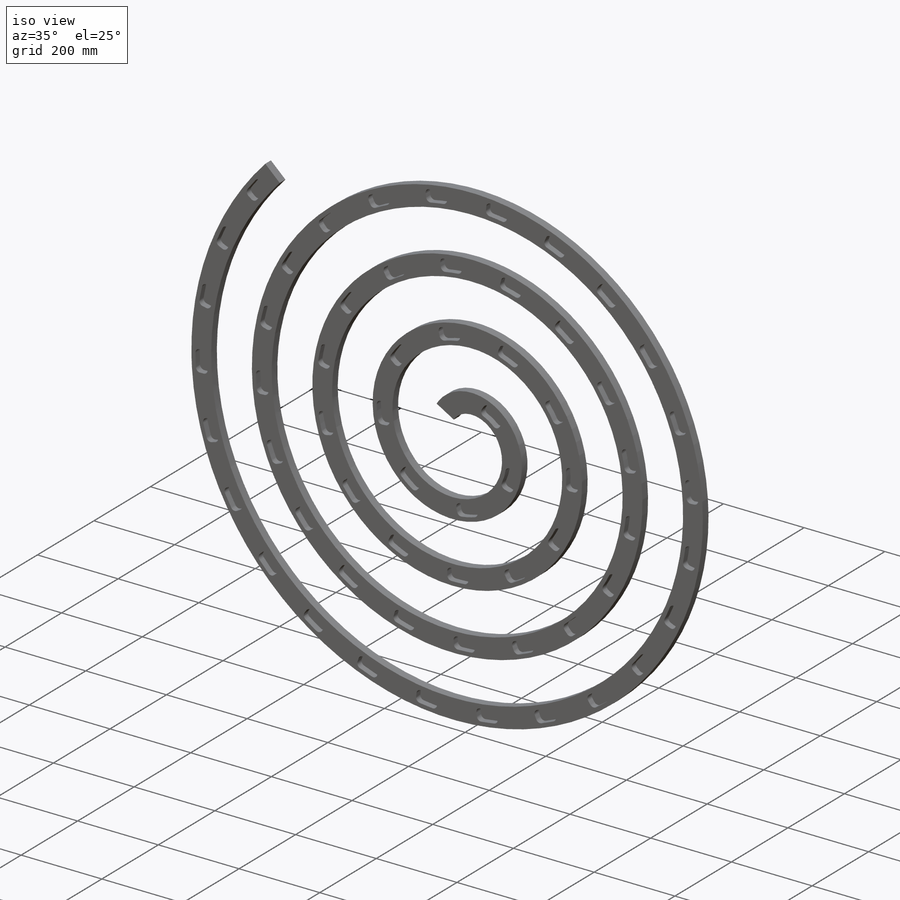
[diagram: iso view]
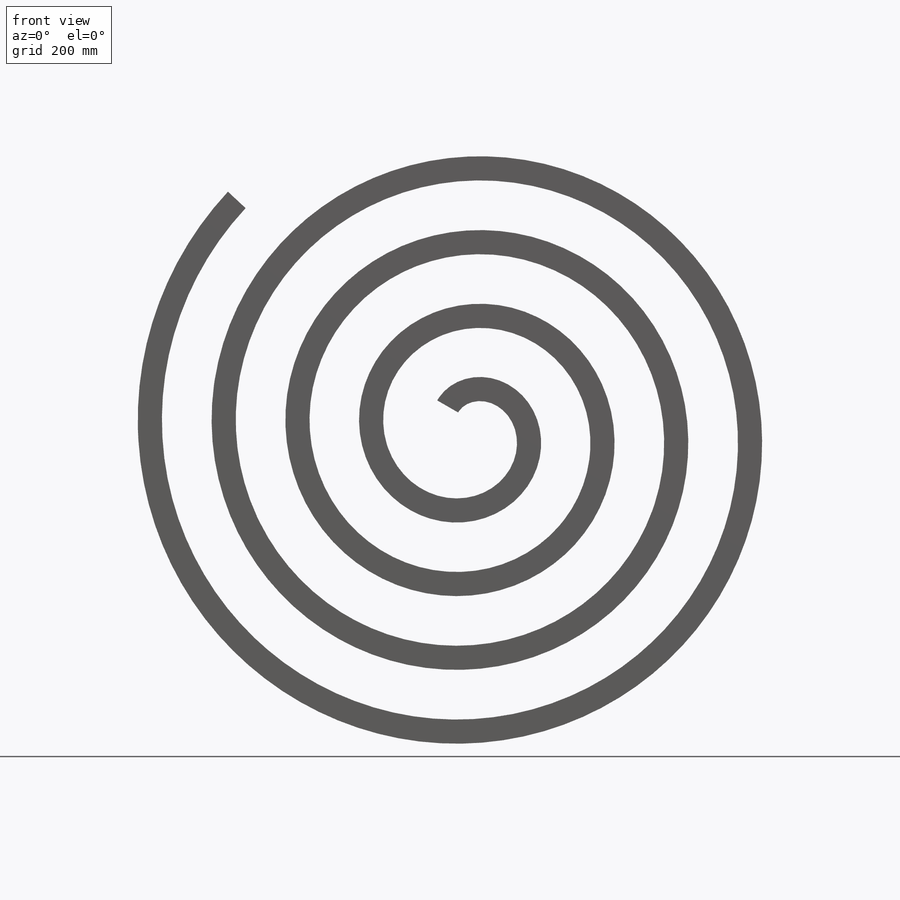
[diagram: front view]
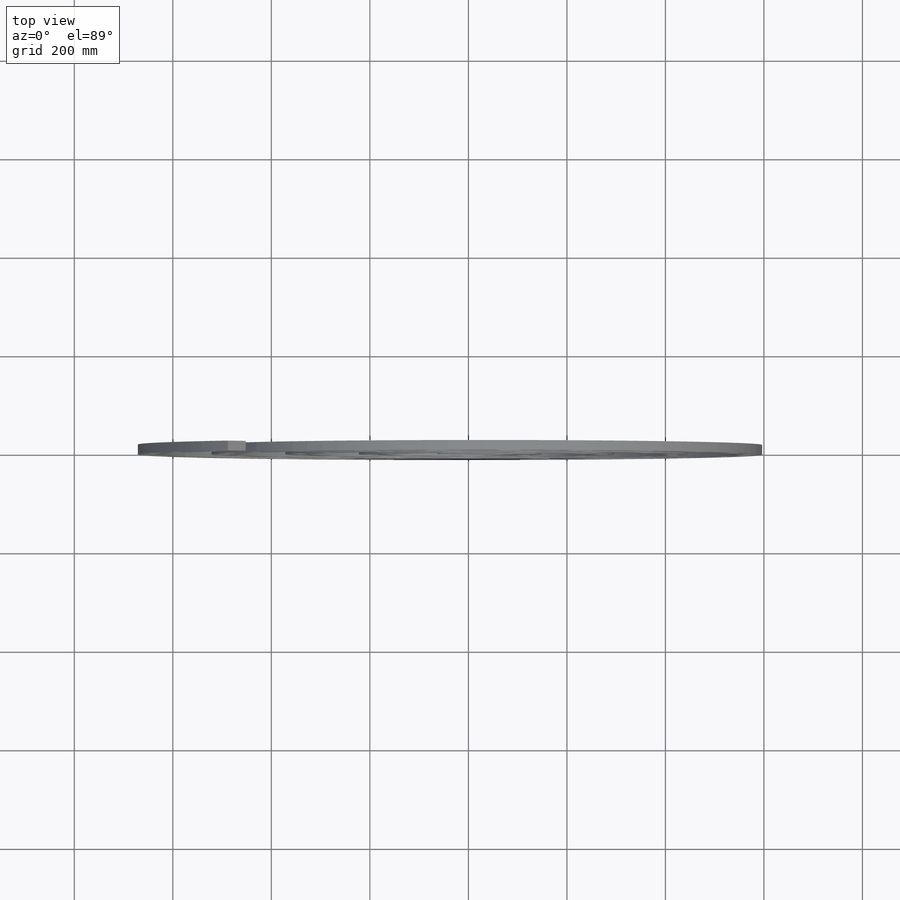
[diagram: top view]
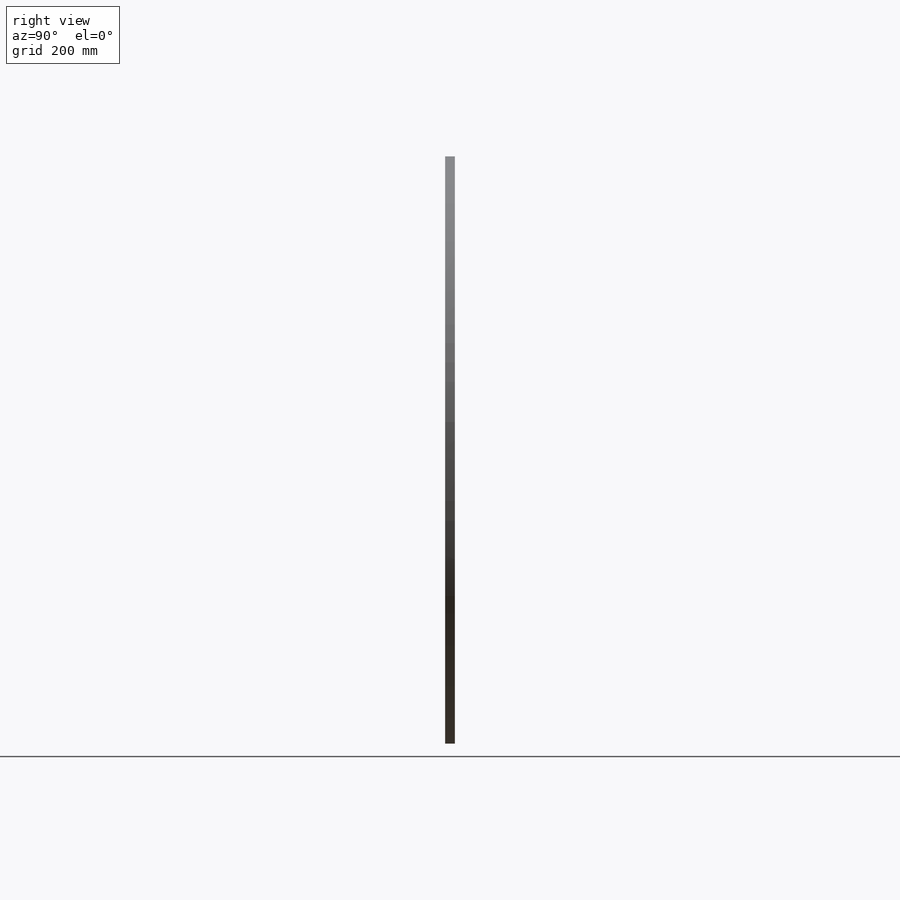
[diagram: right view]
SOLIDWORKS PART (.sldprt)
format: sldprt  version: not decoded by parser v0  size: 3,365,376 bytes
history: native  units: mm
features: plane x5, sketch x5, cut_extrude x2, material x1, helix x1, sweep x1, fillet x1 (+8 scaffold rows collapsed)
feature tree (24):
  scaffold x8  (default folders/planes/origin — collapsed)
  material  "Material <nicht festgelegt>"
  plane  "Ebene vorne"
  plane  "Ebene oben"
  plane  "Ebene rechts"
  sketch  "Skizze1"  dims[D1=130.0mm]
  helix  "s"  Pitch=150mm
  plane  "Ebene1"
  sketch  "Skizze2"  dims[D1=49.0mm D2=20.0mm]
  sweep  "Austragung1"
  sketch  "Skizze3"  dims[D1=26.0mm D2=37.0mm]
  plane  "Ebene2"
  sketch  "Skizze4"  dims[D1=15.0mm]
  cut_extrude  "Schnitt-Linear austragen3"  Depth=10mm
  cut_extrude  "Schnitt-Linear austragen5"  [1 undecoded]
  sketch  "Skizze4<2>"  dims[c1.D1=10.0mm c2.D1=62.0 c2.D3=150.0mm c2.D2=1.0 c2.D4=50.0mm]
  fillet  "Verrundung1"  Radius=10mm
decode coverage: 8 of 10 modeling features carry decoded parameters
note: 1 parameter value undecoded
note: suppression state not decoded; provenance and decode notes live in map.json
